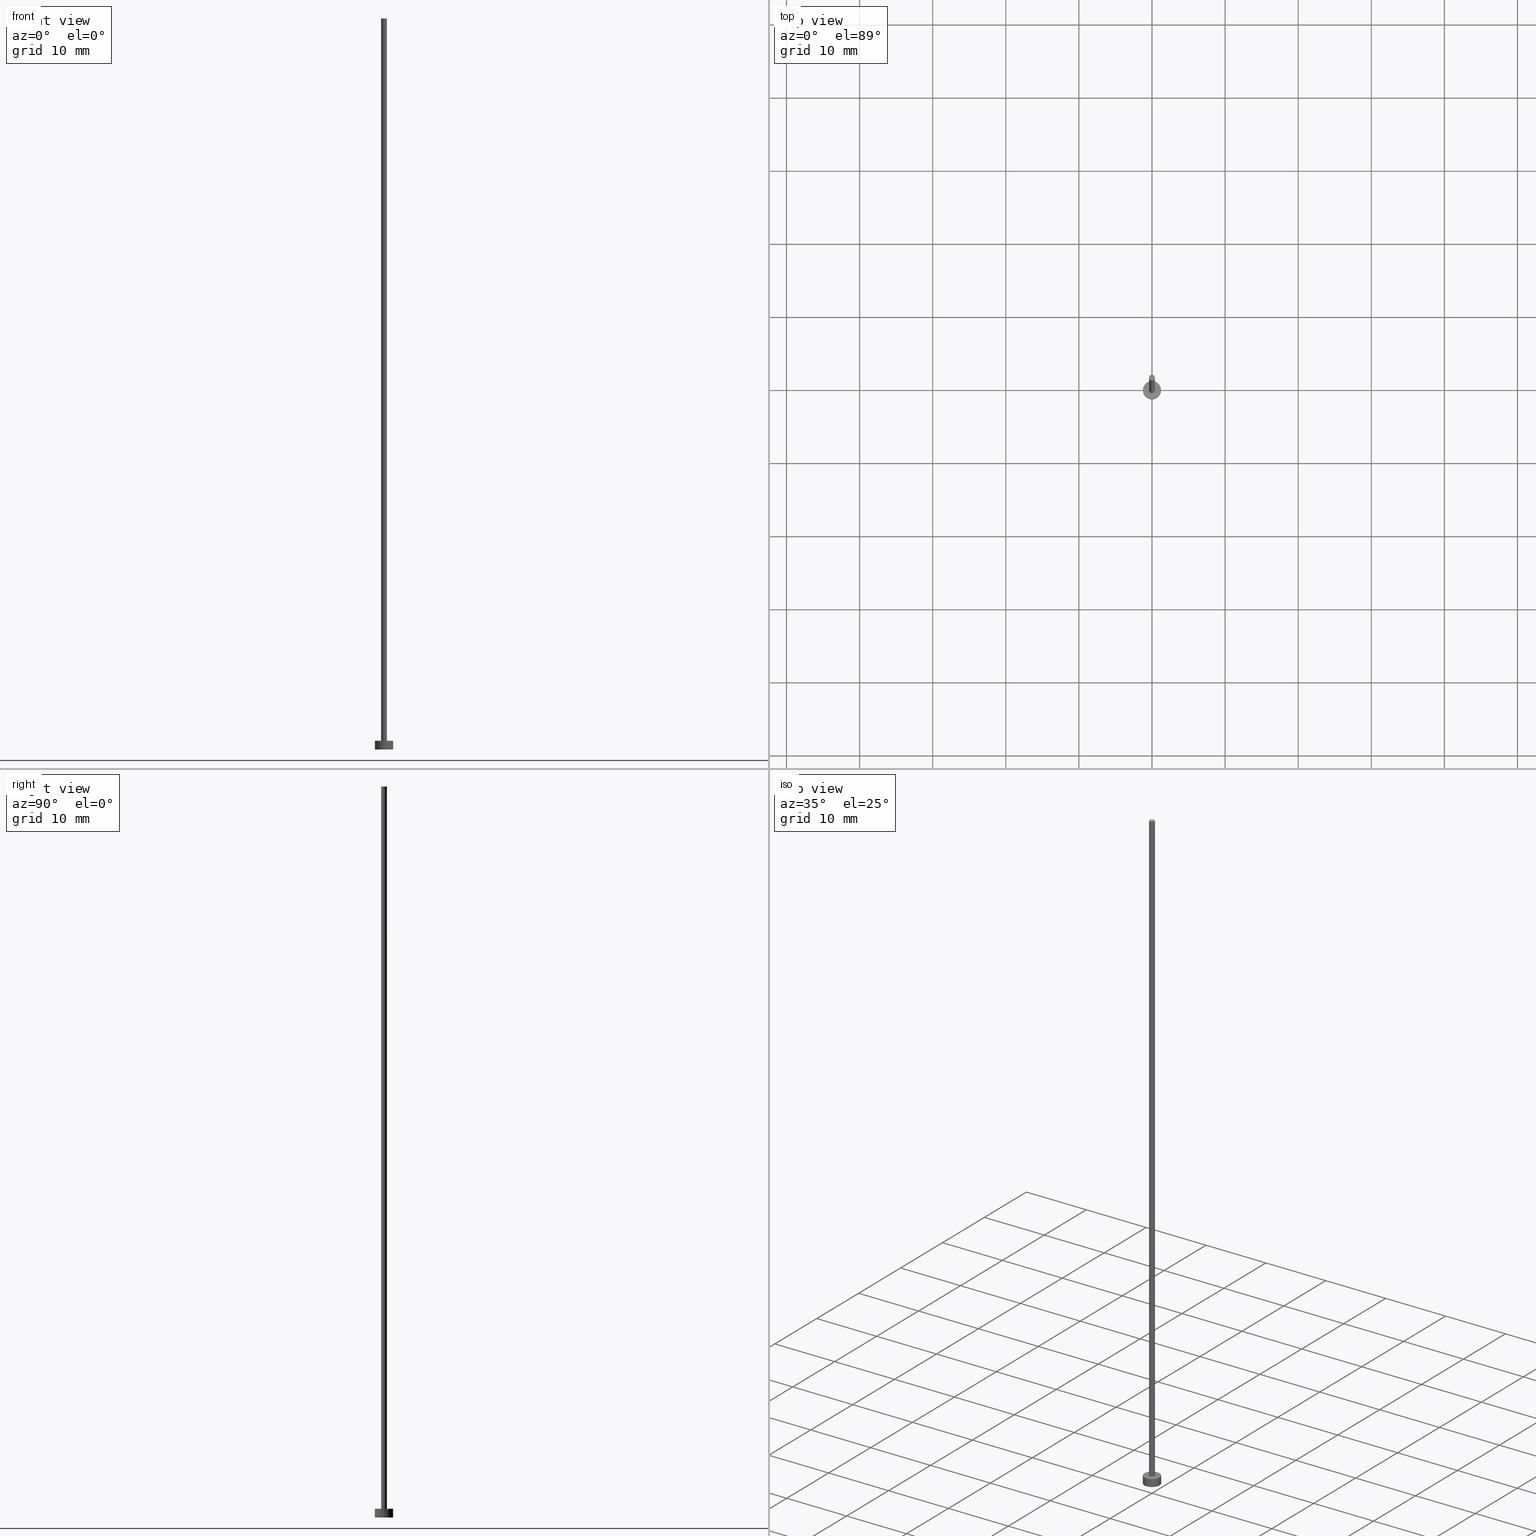
[diagram: canonical four-view strip — front | top / right | iso, engineering-drawing reading convention]
A machine part, canonical four-view strip (front | top / right | iso — engineering-drawing reading convention). The complete STEP part file that produces these views, byte-faithful:
ISO-10303-21;
HEADER;
FILE_DESCRIPTION (( 'STEP AP203' ),
    '1' );
FILE_NAME ('971d.STEP',
    '2026-02-06T12:44:53',
    ( '' ),
    ( '' ),
    'SwSTEP 2.0',
    'SolidWorks 2019',
    '' );
FILE_SCHEMA (( 'CONFIG_CONTROL_DESIGN' ));
ENDSEC;

DATA;
#1 =( GEOMETRIC_REPRESENTATION_CONTEXT ( 3 ) GLOBAL_UNCERTAINTY_ASSIGNED_CONTEXT ( ( #205 ) ) GLOBAL_UNIT_ASSIGNED_CONTEXT ( ( #76, #124, #242 ) ) REPRESENTATION_CONTEXT ( 'NONE', 'WORKASPACE' ) );
#2 = AXIS2_PLACEMENT_3D ( 'NONE', #150, #149, #17 ) ;
#3 = CALENDAR_DATE ( 2026, 6, 2 ) ;
#4 = EDGE_CURVE ( 'NONE', #253, #89, #187, .T. ) ;
#5 = PERSON_AND_ORGANIZATION ( #136, #9 ) ;
#6 = EDGE_LOOP ( 'NONE', ( #140, #39, #188, #91 ) ) ;
#7 = CARTESIAN_POINT ( 'NONE',  ( 0.000000000000000000, 0.000000000000000000, 100.0000000000000000 ) ) ;
#8 = CYLINDRICAL_SURFACE ( 'NONE', #185, 1.250000000000000000 ) ;
#9 = ORGANIZATION ( 'NEUR�EN�', 'NEUR�EN�', '' ) ;
#10 = AXIS2_PLACEMENT_3D ( 'NONE', #22, #23, #171 ) ;
#11 = CARTESIAN_POINT ( 'NONE',  ( -1.250000000000000000, 0.000000000000000000, 1.199999999999999956 ) ) ;
#12 = DATE_AND_TIME ( #3, #105 ) ;
#13 = PERSON_AND_ORGANIZATION ( #136, #9 ) ;
#14 = CARTESIAN_POINT ( 'NONE',  ( 0.000000000000000000, 0.000000000000000000, 1.199999999999999956 ) ) ;
#15 = LOCAL_TIME ( 13, 44, 53.00000000000000000, #151 ) ;
#16 = CARTESIAN_POINT ( 'NONE',  ( -0.4000000000000000222, 0.000000000000000000, 100.0000000000000000 ) ) ;
#17 = DIRECTION ( 'NONE',  ( 1.000000000000000000, 0.000000000000000000, 0.000000000000000000 ) ) ;
#18 = DIRECTION ( 'NONE',  ( -0.000000000000000000, -0.000000000000000000, -1.000000000000000000 ) ) ;
#19 = APPROVAL_STATUS ( 'not_yet_approved' ) ;
#20 = EDGE_LOOP ( 'NONE', ( #190, #208 ) ) ;
#21 = EDGE_CURVE ( 'NONE', #215, #40, #121, .T. ) ;
#22 = CARTESIAN_POINT ( 'NONE',  ( 0.000000000000000000, 0.000000000000000000, 1.199999999999999956 ) ) ;
#23 = DIRECTION ( 'NONE',  ( 0.000000000000000000, 0.000000000000000000, 1.000000000000000000 ) ) ;
#24 = CC_DESIGN_PERSON_AND_ORGANIZATION_ASSIGNMENT ( #95, #37, ( #156 ) ) ;
#25 = EDGE_CURVE ( 'NONE', #89, #253, #26, .T. ) ;
#26 = CIRCLE ( 'NONE', #111, 1.250000000000000000 ) ;
#27 = DIRECTION ( 'NONE',  ( 1.000000000000000000, 0.000000000000000000, -0.000000000000000000 ) ) ;
#28 = MECHANICAL_CONTEXT ( 'NONE', #81, 'mechanical' ) ;
#29 = APPROVAL ( #172, 'NEUR�EN�' ) ;
#30 = DIRECTION ( 'NONE',  ( -1.000000000000000000, 0.000000000000000000, 0.000000000000000000 ) ) ;
#31 = AXIS2_PLACEMENT_3D ( 'NONE', #229, #167, #94 ) ;
#32 = VECTOR ( 'NONE', #201, 1000.000000000000000 ) ;
#33 = ADVANCED_BREP_SHAPE_REPRESENTATION ( '971d', ( #71, #56 ), #1 ) ;
#34 = FACE_OUTER_BOUND ( 'NONE', #138, .T. ) ;
#35 = FACE_OUTER_BOUND ( 'NONE', #173, .T. ) ;
#36 = DIRECTION ( 'NONE',  ( 0.000000000000000000, 0.000000000000000000, 1.000000000000000000 ) ) ;
#37 = PERSON_AND_ORGANIZATION_ROLE ( 'creator' ) ;
#38 = COORDINATED_UNIVERSAL_TIME_OFFSET ( 1, 0, .AHEAD. ) ;
#39 = ORIENTED_EDGE ( 'NONE', *, *, #113, .F. ) ;
#40 = VERTEX_POINT ( 'NONE', #88 ) ;
#41 = SHAPE_DEFINITION_REPRESENTATION ( #57, #33 ) ;
#42 = ORIENTED_EDGE ( 'NONE', *, *, #4, .T. ) ;
#43 = CARTESIAN_POINT ( 'NONE',  ( 0.000000000000000000, 0.000000000000000000, 1.199999999999999956 ) ) ;
#44 = LINE ( 'NONE', #236, #32 ) ;
#45 = EDGE_CURVE ( 'NONE', #235, #215, #132, .T. ) ;
#46 = AXIS2_PLACEMENT_3D ( 'NONE', #114, #52, #204 ) ;
#47 = DIRECTION ( 'NONE',  ( 1.000000000000000000, 0.000000000000000000, 0.000000000000000000 ) ) ;
#48 = DIRECTION ( 'NONE',  ( 1.000000000000000000, 0.000000000000000000, 0.000000000000000000 ) ) ;
#49 = PERSON_AND_ORGANIZATION_ROLE ( 'design_owner' ) ;
#50 = DIRECTION ( 'NONE',  ( 0.000000000000000000, 0.000000000000000000, 1.000000000000000000 ) ) ;
#51 = CC_DESIGN_APPROVAL ( #218, ( #164 ) ) ;
#52 = DIRECTION ( 'NONE',  ( 0.000000000000000000, 0.000000000000000000, 1.000000000000000000 ) ) ;
#53 = DIRECTION ( 'NONE',  ( -0.000000000000000000, -0.000000000000000000, -1.000000000000000000 ) ) ;
#54 = AXIS2_PLACEMENT_3D ( 'NONE', #197, #177, #238 ) ;
#55 = CALENDAR_DATE ( 2026, 6, 2 ) ;
#56 = AXIS2_PLACEMENT_3D ( 'NONE', #237, #241, #217 ) ;
#57 = PRODUCT_DEFINITION_SHAPE ( 'NONE', 'NONE',  #156 ) ;
#58 = PRODUCT_RELATED_PRODUCT_CATEGORY ( 'detail', '', ( #100 ) ) ;
#59 = EDGE_CURVE ( 'NONE', #106, #253, #44, .T. ) ;
#60 = DATE_AND_TIME ( #141, #214 ) ;
#61 = ORIENTED_EDGE ( 'NONE', *, *, #4, .F. ) ;
#62 = AXIS2_PLACEMENT_3D ( 'NONE', #14, #250, #135 ) ;
#63 = PERSON_AND_ORGANIZATION_ROLE ( 'classification_officer' ) ;
#64 = ORIENTED_EDGE ( 'NONE', *, *, #170, .T. ) ;
#65 = PERSON_AND_ORGANIZATION ( #136, #9 ) ;
#66 = ORIENTED_EDGE ( 'NONE', *, *, #70, .T. ) ;
#67 = DIRECTION ( 'NONE',  ( 0.000000000000000000, 0.000000000000000000, 1.000000000000000000 ) ) ;
#68 = CC_DESIGN_DATE_AND_TIME_ASSIGNMENT ( #231, #139, ( #220 ) ) ;
#69 = CYLINDRICAL_SURFACE ( 'NONE', #54, 0.4000000000000000222 ) ;
#70 = EDGE_CURVE ( 'NONE', #235, #194, #87, .T. ) ;
#71 = MANIFOLD_SOLID_BREP ( 'P�idat vysunut�m3', #192 ) ;
#72 = EDGE_LOOP ( 'NONE', ( #211, #66 ) ) ;
#73 = ADVANCED_FACE ( 'NONE', ( #147 ), #69, .T. ) ;
#74 = DIRECTION ( 'NONE',  ( -1.000000000000000000, 0.000000000000000000, 0.000000000000000000 ) ) ;
#75 = CARTESIAN_POINT ( 'NONE',  ( 1.250000000000000000, 1.530808498934191571E-16, 0.000000000000000000 ) ) ;
#76 =( LENGTH_UNIT ( ) NAMED_UNIT ( * ) SI_UNIT ( .MILLI., .METRE. ) );
#77 = AXIS2_PLACEMENT_3D ( 'NONE', #43, #161, #48 ) ;
#78 = DIRECTION ( 'NONE',  ( 1.000000000000000000, 0.000000000000000000, -0.000000000000000000 ) ) ;
#79 = COORDINATED_UNIVERSAL_TIME_OFFSET ( 1, 0, .AHEAD. ) ;
#80 = CIRCLE ( 'NONE', #118, 0.4000000000000000222 ) ;
#81 = APPLICATION_CONTEXT ( 'configuration controlled 3d designs of mechanical parts and assemblies' ) ;
#82 = EDGE_LOOP ( 'NONE', ( #119, #123, #42, #233 ) ) ;
#83 = ORIENTED_EDGE ( 'NONE', *, *, #70, .F. ) ;
#84 = ADVANCED_FACE ( 'NONE', ( #145 ), #90, .T. ) ;
#85 = CARTESIAN_POINT ( 'NONE',  ( 0.000000000000000000, 0.000000000000000000, 0.000000000000000000 ) ) ;
#86 = LOCAL_TIME ( 13, 44, 53.00000000000000000, #152 ) ;
#87 = CIRCLE ( 'NONE', #224, 0.4000000000000000222 ) ;
#88 = CARTESIAN_POINT ( 'NONE',  ( -0.4000000000000000222, 0.000000000000000000, 1.199999999999999956 ) ) ;
#89 = VERTEX_POINT ( 'NONE', #92 ) ;
#90 = PLANE ( 'NONE',  #126 ) ;
#91 = ORIENTED_EDGE ( 'NONE', *, *, #25, .T. ) ;
#92 = CARTESIAN_POINT ( 'NONE',  ( -1.250000000000000000, 0.000000000000000000, 0.000000000000000000 ) ) ;
#93 = PERSON_AND_ORGANIZATION_ROLE ( 'design_supplier' ) ;
#94 = DIRECTION ( 'NONE',  ( -1.000000000000000000, 0.000000000000000000, 0.000000000000000000 ) ) ;
#95 = PERSON_AND_ORGANIZATION ( #136, #9 ) ;
#96 = ADVANCED_FACE ( 'NONE', ( #178 ), #8, .T. ) ;
#97 = APPROVAL ( #199, 'NEUR�EN�' ) ;
#98 = CYLINDRICAL_SURFACE ( 'NONE', #31, 0.4000000000000000222 ) ;
#99 = APPLICATION_CONTEXT ( 'configuration controlled 3d designs of mechanical parts and assemblies' ) ;
#100 = PRODUCT ( '971d', '971d', '', ( #28 ) ) ;
#101 = FACE_OUTER_BOUND ( 'NONE', #162, .T. ) ;
#102 = APPROVAL_ROLE ( '' ) ;
#103 = CIRCLE ( 'NONE', #62, 0.4000000000000000222 ) ;
#104 = ORIENTED_EDGE ( 'NONE', *, *, #113, .T. ) ;
#105 = LOCAL_TIME ( 13, 44, 53.00000000000000000, #174 ) ;
#106 = VERTEX_POINT ( 'NONE', #112 ) ;
#107 = APPROVAL_DATE_TIME ( #60, #29 ) ;
#108 = APPLICATION_PROTOCOL_DEFINITION ( 'international standard', 'config_control_design', 1994, #99 ) ;
#109 = EDGE_CURVE ( 'NONE', #122, #89, #179, .T. ) ;
#110 = APPROVAL_PERSON_ORGANIZATION ( #251, #218, #102 ) ;
#111 = AXIS2_PLACEMENT_3D ( 'NONE', #182, #50, #240 ) ;
#112 = CARTESIAN_POINT ( 'NONE',  ( 1.250000000000000000, 1.530808498934191571E-16, 1.199999999999999956 ) ) ;
#113 = EDGE_CURVE ( 'NONE', #122, #106, #223, .T. ) ;
#114 = CARTESIAN_POINT ( 'NONE',  ( 0.000000000000000000, 0.000000000000000000, 0.000000000000000000 ) ) ;
#115 = DIRECTION ( 'NONE',  ( -0.000000000000000000, -0.000000000000000000, -1.000000000000000000 ) ) ;
#116 = APPROVAL_DATE_TIME ( #203, #218 ) ;
#117 = AXIS2_PLACEMENT_3D ( 'NONE', #244, #53, #74 ) ;
#118 = AXIS2_PLACEMENT_3D ( 'NONE', #176, #239, #133 ) ;
#119 = ORIENTED_EDGE ( 'NONE', *, *, #216, .F. ) ;
#120 = ORIENTED_EDGE ( 'NONE', *, *, #25, .F. ) ;
#121 = CIRCLE ( 'NONE', #10, 0.4000000000000000222 ) ;
#122 = VERTEX_POINT ( 'NONE', #196 ) ;
#123 = ORIENTED_EDGE ( 'NONE', *, *, #59, .T. ) ;
#124 =( NAMED_UNIT ( * ) PLANE_ANGLE_UNIT ( ) SI_UNIT ( $, .RADIAN. ) );
#125 = APPROVAL_PERSON_ORGANIZATION ( #130, #97, #180 ) ;
#126 = AXIS2_PLACEMENT_3D ( 'NONE', #127, #160, #27 ) ;
#127 = CARTESIAN_POINT ( 'NONE',  ( 0.000000000000000000, 0.000000000000000000, 100.0000000000000000 ) ) ;
#128 = EDGE_CURVE ( 'NONE', #194, #235, #80, .T. ) ;
#129 = CARTESIAN_POINT ( 'NONE',  ( 0.000000000000000000, 0.000000000000000000, 1.199999999999999956 ) ) ;
#130 = PERSON_AND_ORGANIZATION ( #136, #9 ) ;
#131 = CARTESIAN_POINT ( 'NONE',  ( 0.4000000000000000222, 4.898587196589413075E-17, 100.0000000000000000 ) ) ;
#132 = LINE ( 'NONE', #158, #143 ) ;
#133 = DIRECTION ( 'NONE',  ( 1.000000000000000000, 0.000000000000000000, 0.000000000000000000 ) ) ;
#134 = CC_DESIGN_PERSON_AND_ORGANIZATION_ASSIGNMENT ( #153, #63, ( #220 ) ) ;
#135 = DIRECTION ( 'NONE',  ( 1.000000000000000000, 0.000000000000000000, 0.000000000000000000 ) ) ;
#136 = PERSON ( 'NEUR�EN�', 'NEUR�EN�', 'NEUR�EN�', ('NEUR�EN�'), ('NEUR�EN�'), ('NEUR�EN�') ) ;
#137 = APPROVAL_ROLE ( '' ) ;
#138 = EDGE_LOOP ( 'NONE', ( #120, #61 ) ) ;
#139 = DATE_TIME_ROLE ( 'classification_date' ) ;
#140 = ORIENTED_EDGE ( 'NONE', *, *, #59, .F. ) ;
#141 = CALENDAR_DATE ( 2026, 6, 2 ) ;
#142 = ORIENTED_EDGE ( 'NONE', *, *, #21, .T. ) ;
#143 = VECTOR ( 'NONE', #221, 1000.000000000000000 ) ;
#144 = ADVANCED_FACE ( 'NONE', ( #34 ), #206, .F. ) ;
#145 = FACE_OUTER_BOUND ( 'NONE', #72, .T. ) ;
#146 = DIRECTION ( 'NONE',  ( 0.000000000000000000, 0.000000000000000000, 1.000000000000000000 ) ) ;
#147 = FACE_OUTER_BOUND ( 'NONE', #210, .T. ) ;
#148 = CC_DESIGN_APPROVAL ( #29, ( #220 ) ) ;
#149 = DIRECTION ( 'NONE',  ( 0.000000000000000000, 0.000000000000000000, 1.000000000000000000 ) ) ;
#150 = CARTESIAN_POINT ( 'NONE',  ( 0.000000000000000000, 0.000000000000000000, 1.199999999999999956 ) ) ;
#151 = COORDINATED_UNIVERSAL_TIME_OFFSET ( 1, 0, .AHEAD. ) ;
#152 = COORDINATED_UNIVERSAL_TIME_OFFSET ( 1, 0, .AHEAD. ) ;
#153 = PERSON_AND_ORGANIZATION ( #136, #9 ) ;
#154 = ORIENTED_EDGE ( 'NONE', *, *, #165, .T. ) ;
#155 = ORIENTED_EDGE ( 'NONE', *, *, #216, .T. ) ;
#156 = PRODUCT_DEFINITION ( 'NEZN�M�', '', #164, #248 ) ;
#157 = VECTOR ( 'NONE', #115, 1000.000000000000000 ) ;
#158 = CARTESIAN_POINT ( 'NONE',  ( 0.4000000000000000222, 4.898587196589413075E-17, 100.0000000000000000 ) ) ;
#159 = ORIENTED_EDGE ( 'NONE', *, *, #165, .F. ) ;
#160 = DIRECTION ( 'NONE',  ( 0.000000000000000000, 0.000000000000000000, 1.000000000000000000 ) ) ;
#161 = DIRECTION ( 'NONE',  ( 0.000000000000000000, 0.000000000000000000, 1.000000000000000000 ) ) ;
#162 = EDGE_LOOP ( 'NONE', ( #83, #189, #142, #159 ) ) ;
#163 = LINE ( 'NONE', #16, #157 ) ;
#164 = PRODUCT_DEFINITION_FORMATION_WITH_SPECIFIED_SOURCE ( 'LIBOVOLN�', '', #100, .NOT_KNOWN. ) ;
#165 = EDGE_CURVE ( 'NONE', #194, #40, #163, .T. ) ;
#166 = CARTESIAN_POINT ( 'NONE',  ( 0.000000000000000000, 0.000000000000000000, 1.199999999999999956 ) ) ;
#167 = DIRECTION ( 'NONE',  ( -0.000000000000000000, -0.000000000000000000, -1.000000000000000000 ) ) ;
#168 = CARTESIAN_POINT ( 'NONE',  ( -0.4000000000000000222, 0.000000000000000000, 100.0000000000000000 ) ) ;
#169 = APPROVAL_PERSON_ORGANIZATION ( #65, #29, #137 ) ;
#170 = EDGE_CURVE ( 'NONE', #40, #215, #103, .T. ) ;
#171 = DIRECTION ( 'NONE',  ( 1.000000000000000000, 0.000000000000000000, 0.000000000000000000 ) ) ;
#172 = APPROVAL_STATUS ( 'not_yet_approved' ) ;
#173 = EDGE_LOOP ( 'NONE', ( #104, #155 ) ) ;
#174 = COORDINATED_UNIVERSAL_TIME_OFFSET ( 1, 0, .AHEAD. ) ;
#175 = CC_DESIGN_SECURITY_CLASSIFICATION ( #220, ( #164 ) ) ;
#176 = CARTESIAN_POINT ( 'NONE',  ( 0.000000000000000000, 0.000000000000000000, 100.0000000000000000 ) ) ;
#177 = DIRECTION ( 'NONE',  ( -0.000000000000000000, -0.000000000000000000, -1.000000000000000000 ) ) ;
#178 = FACE_OUTER_BOUND ( 'NONE', #82, .T. ) ;
#179 = LINE ( 'NONE', #11, #200 ) ;
#180 = APPROVAL_ROLE ( '' ) ;
#181 = PLANE ( 'NONE',  #232 ) ;
#182 = CARTESIAN_POINT ( 'NONE',  ( 0.000000000000000000, 0.000000000000000000, 0.000000000000000000 ) ) ;
#183 = PERSON_AND_ORGANIZATION_ROLE ( 'creator' ) ;
#184 = DATE_TIME_ROLE ( 'creation_date' ) ;
#185 = AXIS2_PLACEMENT_3D ( 'NONE', #129, #198, #30 ) ;
#186 = CC_DESIGN_APPROVAL ( #97, ( #156 ) ) ;
#187 = CIRCLE ( 'NONE', #227, 1.250000000000000000 ) ;
#188 = ORIENTED_EDGE ( 'NONE', *, *, #109, .T. ) ;
#189 = ORIENTED_EDGE ( 'NONE', *, *, #45, .T. ) ;
#190 = ORIENTED_EDGE ( 'NONE', *, *, #170, .F. ) ;
#191 = DIRECTION ( 'NONE',  ( 1.000000000000000000, 0.000000000000000000, 0.000000000000000000 ) ) ;
#192 = CLOSED_SHELL ( 'NONE', ( #209, #96, #247, #193, #144, #73, #84 ) ) ;
#193 = ADVANCED_FACE ( 'NONE', ( #207, #35 ), #181, .T. ) ;
#194 = VERTEX_POINT ( 'NONE', #168 ) ;
#195 = CIRCLE ( 'NONE', #2, 1.250000000000000000 ) ;
#196 = CARTESIAN_POINT ( 'NONE',  ( -1.250000000000000000, 0.000000000000000000, 1.199999999999999956 ) ) ;
#197 = CARTESIAN_POINT ( 'NONE',  ( 0.000000000000000000, 0.000000000000000000, 100.0000000000000000 ) ) ;
#198 = DIRECTION ( 'NONE',  ( -0.000000000000000000, -0.000000000000000000, -1.000000000000000000 ) ) ;
#199 = APPROVAL_STATUS ( 'not_yet_approved' ) ;
#200 = VECTOR ( 'NONE', #18, 1000.000000000000000 ) ;
#201 = DIRECTION ( 'NONE',  ( -0.000000000000000000, -0.000000000000000000, -1.000000000000000000 ) ) ;
#202 = PERSON_AND_ORGANIZATION ( #136, #9 ) ;
#203 = DATE_AND_TIME ( #230, #249 ) ;
#204 = DIRECTION ( 'NONE',  ( 1.000000000000000000, 0.000000000000000000, -0.000000000000000000 ) ) ;
#205 = UNCERTAINTY_MEASURE_WITH_UNIT (LENGTH_MEASURE( 1.000000000000000082E-05 ), #76, 'distance_accuracy_value', 'NONE');
#206 = PLANE ( 'NONE',  #46 ) ;
#207 = FACE_BOUND ( 'NONE', #20, .T. ) ;
#208 = ORIENTED_EDGE ( 'NONE', *, *, #21, .F. ) ;
#209 = ADVANCED_FACE ( 'NONE', ( #101 ), #98, .T. ) ;
#210 = EDGE_LOOP ( 'NONE', ( #213, #255, #154, #64 ) ) ;
#211 = ORIENTED_EDGE ( 'NONE', *, *, #128, .T. ) ;
#212 = CC_DESIGN_PERSON_AND_ORGANIZATION_ASSIGNMENT ( #5, #49, ( #100 ) ) ;
#213 = ORIENTED_EDGE ( 'NONE', *, *, #45, .F. ) ;
#214 = LOCAL_TIME ( 13, 44, 53.00000000000000000, #38 ) ;
#215 = VERTEX_POINT ( 'NONE', #245 ) ;
#216 = EDGE_CURVE ( 'NONE', #106, #122, #195, .T. ) ;
#217 = DIRECTION ( 'NONE',  ( 1.000000000000000000, 0.000000000000000000, 0.000000000000000000 ) ) ;
#218 = APPROVAL ( #19, 'NEUR�EN�' ) ;
#219 = CC_DESIGN_PERSON_AND_ORGANIZATION_ASSIGNMENT ( #13, #93, ( #164 ) ) ;
#220 = SECURITY_CLASSIFICATION ( '', '', #252 ) ;
#221 = DIRECTION ( 'NONE',  ( -0.000000000000000000, -0.000000000000000000, -1.000000000000000000 ) ) ;
#222 = APPLICATION_PROTOCOL_DEFINITION ( 'international standard', 'config_control_design', 1994, #81 ) ;
#223 = CIRCLE ( 'NONE', #77, 1.250000000000000000 ) ;
#224 = AXIS2_PLACEMENT_3D ( 'NONE', #7, #146, #47 ) ;
#225 = DATE_AND_TIME ( #55, #15 ) ;
#226 = CYLINDRICAL_SURFACE ( 'NONE', #117, 1.250000000000000000 ) ;
#227 = AXIS2_PLACEMENT_3D ( 'NONE', #85, #67, #191 ) ;
#228 = APPROVAL_DATE_TIME ( #12, #97 ) ;
#229 = CARTESIAN_POINT ( 'NONE',  ( 0.000000000000000000, 0.000000000000000000, 100.0000000000000000 ) ) ;
#230 = CALENDAR_DATE ( 2026, 6, 2 ) ;
#231 = DATE_AND_TIME ( #234, #86 ) ;
#232 = AXIS2_PLACEMENT_3D ( 'NONE', #166, #36, #78 ) ;
#233 = ORIENTED_EDGE ( 'NONE', *, *, #109, .F. ) ;
#234 = CALENDAR_DATE ( 2026, 6, 2 ) ;
#235 = VERTEX_POINT ( 'NONE', #131 ) ;
#236 = CARTESIAN_POINT ( 'NONE',  ( 1.250000000000000000, 1.530808498934191571E-16, 1.199999999999999956 ) ) ;
#237 = CARTESIAN_POINT ( 'NONE',  ( 0.000000000000000000, 0.000000000000000000, 0.000000000000000000 ) ) ;
#238 = DIRECTION ( 'NONE',  ( -1.000000000000000000, 0.000000000000000000, 0.000000000000000000 ) ) ;
#239 = DIRECTION ( 'NONE',  ( 0.000000000000000000, 0.000000000000000000, 1.000000000000000000 ) ) ;
#240 = DIRECTION ( 'NONE',  ( 1.000000000000000000, 0.000000000000000000, 0.000000000000000000 ) ) ;
#241 = DIRECTION ( 'NONE',  ( 0.000000000000000000, 0.000000000000000000, 1.000000000000000000 ) ) ;
#242 =( NAMED_UNIT ( * ) SI_UNIT ( $, .STERADIAN. ) SOLID_ANGLE_UNIT ( ) );
#243 = CC_DESIGN_PERSON_AND_ORGANIZATION_ASSIGNMENT ( #202, #183, ( #164 ) ) ;
#244 = CARTESIAN_POINT ( 'NONE',  ( 0.000000000000000000, 0.000000000000000000, 1.199999999999999956 ) ) ;
#245 = CARTESIAN_POINT ( 'NONE',  ( 0.4000000000000000222, 4.898587196589413075E-17, 1.199999999999999956 ) ) ;
#246 = FACE_OUTER_BOUND ( 'NONE', #6, .T. ) ;
#247 = ADVANCED_FACE ( 'NONE', ( #246 ), #226, .T. ) ;
#248 = DESIGN_CONTEXT ( 'detailed design', #99, 'design' ) ;
#249 = LOCAL_TIME ( 13, 44, 53.00000000000000000, #79 ) ;
#250 = DIRECTION ( 'NONE',  ( 0.000000000000000000, 0.000000000000000000, 1.000000000000000000 ) ) ;
#251 = PERSON_AND_ORGANIZATION ( #136, #9 ) ;
#252 = SECURITY_CLASSIFICATION_LEVEL ( 'unclassified' ) ;
#253 = VERTEX_POINT ( 'NONE', #75 ) ;
#254 = CC_DESIGN_DATE_AND_TIME_ASSIGNMENT ( #225, #184, ( #156 ) ) ;
#255 = ORIENTED_EDGE ( 'NONE', *, *, #128, .F. ) ;
ENDSEC;
END-ISO-10303-21;
